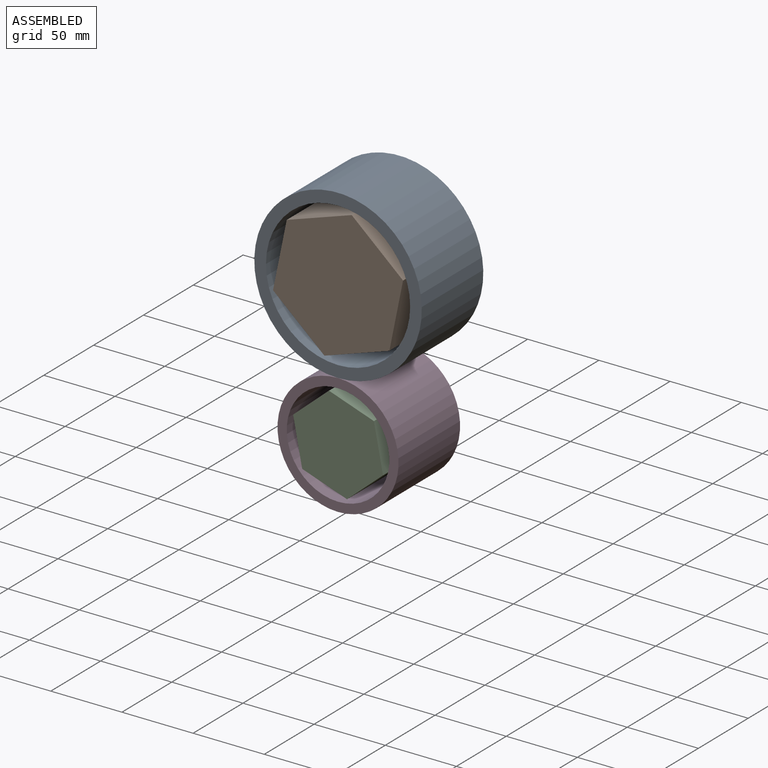
[diagram: assembled view]
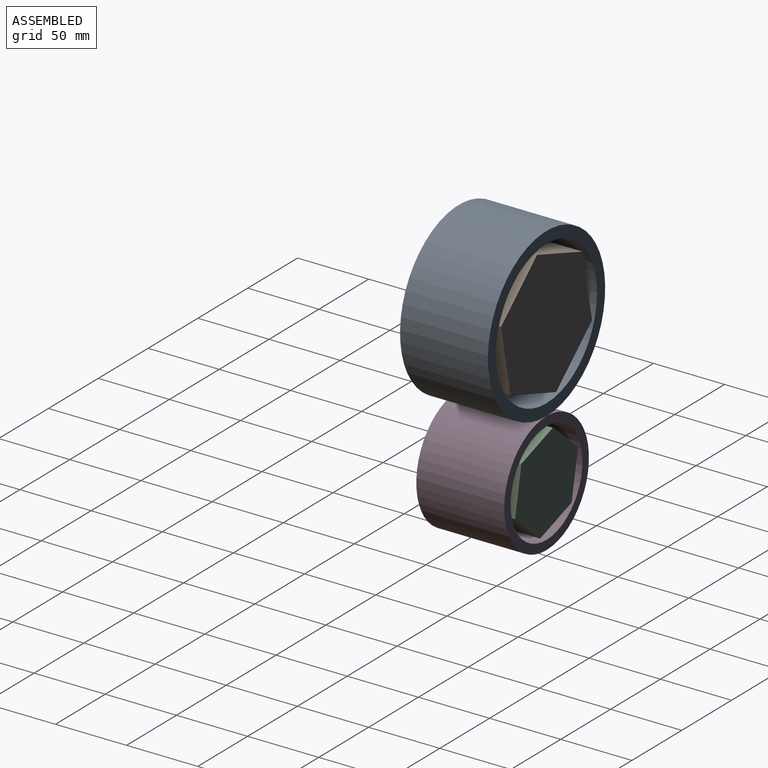
[diagram: assembled view, second angle]
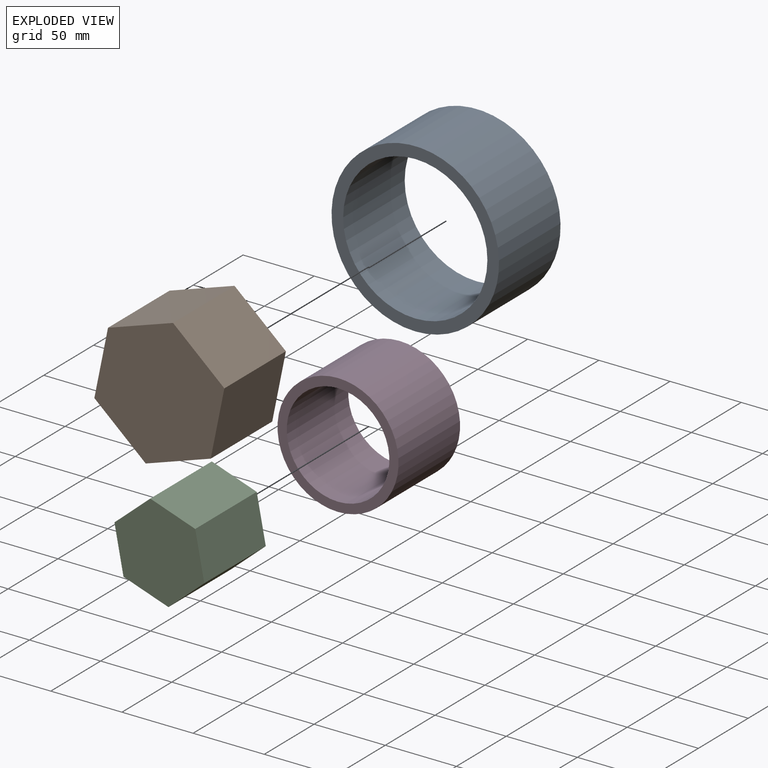
[diagram: exploded view]
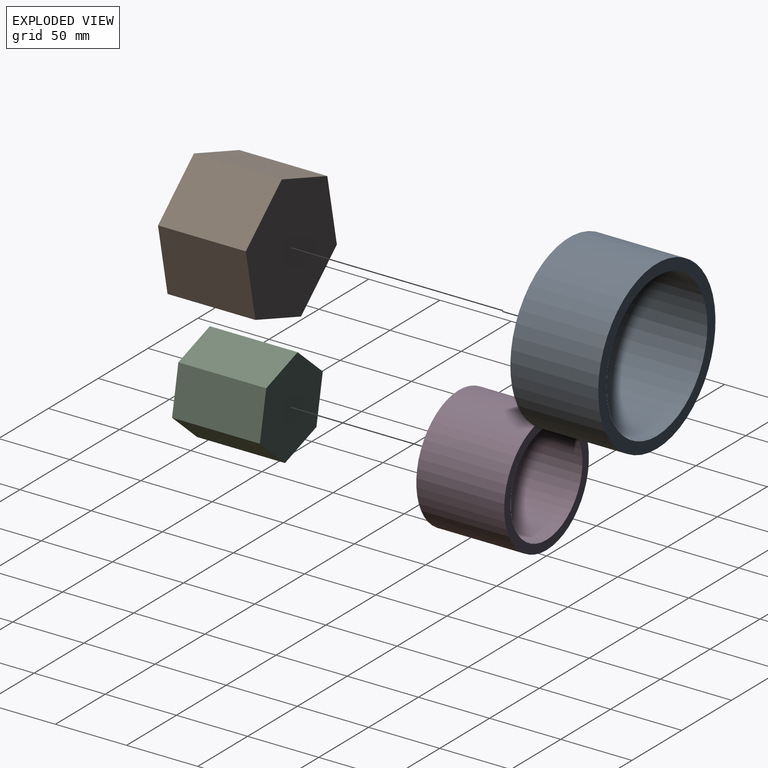
[diagram: exploded view, second angle]
ASSEMBLY  parts=4 mates=2
PART A: 4 faces, bbox 117.7x61.7x117.7 mm
  f0: cylinder r=50.67mm len=101.34mm, axis (0,1,0), area 19649.8mm2, adj f2,f3
  f1: cylinder r=58.84mm len=117.68mm, axis (0,1,0), area 22818.7mm2, adj f2,f3
  f2: plane 117.68x117.68mm, normal (0,-1,0), area 2811.2mm2, adj f0,f1
  f3: plane 117.68x117.68mm, normal (0,1,0), area 2811.2mm2, adj f0,f1
PART B: 8 faces, bbox 95.5x61.7x89.2 mm
  f0: plane 61.72x44.58mm, normal (0.93,0,-0.38), area 2973mm2, adj f1,f5,f6,f7
  f1: plane 61.72x38.08mm, normal (0.79,0,0.61), area 2973mm2, adj f0,f2,f6,f7
  f2: plane 61.72x47.73mm, normal (-0.13,0,0.99), area 2973mm2, adj f1,f3,f6,f7
  f3: plane 61.72x44.58mm, normal (-0.93,0,0.38), area 2973mm2, adj f2,f4,f6,f7
  f4: plane 61.72x38.08mm, normal (-0.79,0,-0.61), area 2973mm2, adj f3,f5,f6,f7
  f5: plane 61.72x47.73mm, normal (0.13,0,-0.99), area 2973mm2, adj f0,f4,f6,f7
  f6: plane 95.45x89.16mm, normal (0,-1,0), area 6027.7mm2, adj f0,f1,f2,f3,f4,f5
  f7: plane 95.45x89.16mm, normal (0,1,0), area 6027.7mm2, adj f0,f1,f2,f3,f4,f5
PART C: 8 faces, bbox 65.8x61.7x62.7 mm
  f0: plane 61.72x31.35mm, normal (0.94,0,-0.34), area 2060.1mm2, adj f1,f5,f6,f7
  f1: plane 61.72x25.59mm, normal (0.77,0,0.64), area 2060.1mm2, adj f0,f2,f6,f7
  f2: plane 61.72x32.88mm, normal (-0.17,0,0.98), area 2060.1mm2, adj f1,f3,f6,f7
  f3: plane 61.72x31.35mm, normal (-0.94,0,0.34), area 2060.1mm2, adj f2,f4,f6,f7
  f4: plane 61.72x25.59mm, normal (-0.77,0,-0.64), area 2060.1mm2, adj f3,f5,f6,f7
  f5: plane 61.72x32.88mm, normal (0.17,0,-0.98), area 2060.1mm2, adj f0,f4,f6,f7
  f6: plane 65.75x62.71mm, normal (0,-1,0), area 2894.3mm2, adj f0,f1,f2,f3,f4,f5
  f7: plane 65.75x62.71mm, normal (0,1,0), area 2894.3mm2, adj f0,f1,f2,f3,f4,f5
PART D: 4 faces, bbox 85.1x61.7x85.1 mm
  f0: cylinder r=36.06mm len=72.13mm, axis (0,1,0), area 13985.9mm2, adj f2,f3
  f1: cylinder r=42.53mm len=85.05mm, axis (0,1,0), area 16492.1mm2, adj f2,f3
  f2: plane 85.05x85.05mm, normal (0,-1,0), area 1595.5mm2, adj f0,f1
  f3: plane 85.05x85.05mm, normal (0,1,0), area 1595.5mm2, adj f0,f1
PLACE A at identity fixed
PLACE B rot(axis=(0,-1,0),70.8deg) t=(95.7,0,67.96)mm
PLACE C rot(axis=(0,-1,0),151deg) t=(0,0,0)mm
PLACE D at identity fixed
MATE revolute B.f6 <-> A.f1  axis (0,-1,0) through (0,-61.72,101.37)mm
MATE revolute C.f6 <-> D.f0  axis (0,-1,0) through (0,-61.72,0)mm
